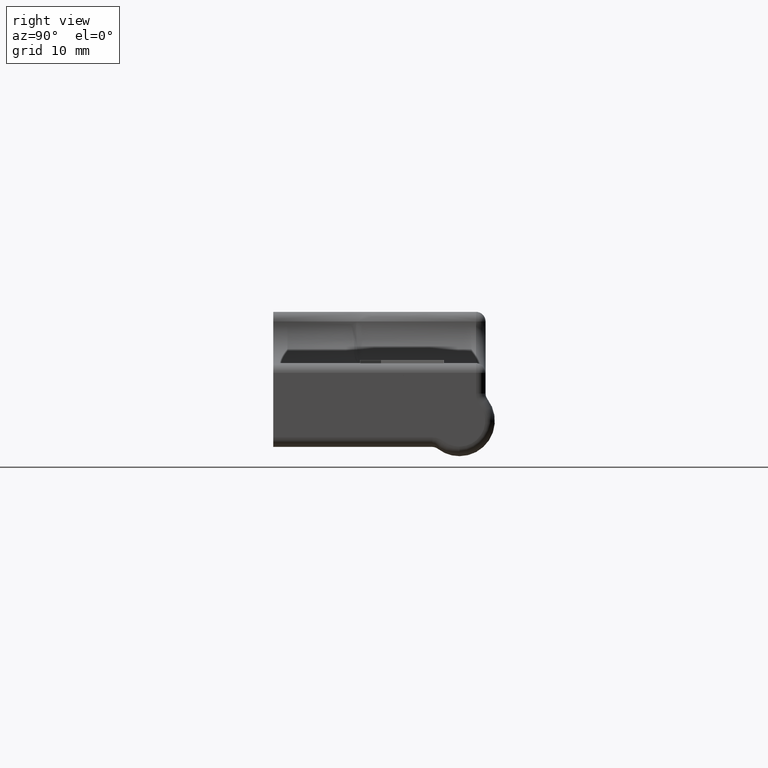
[diagram: clean part render]
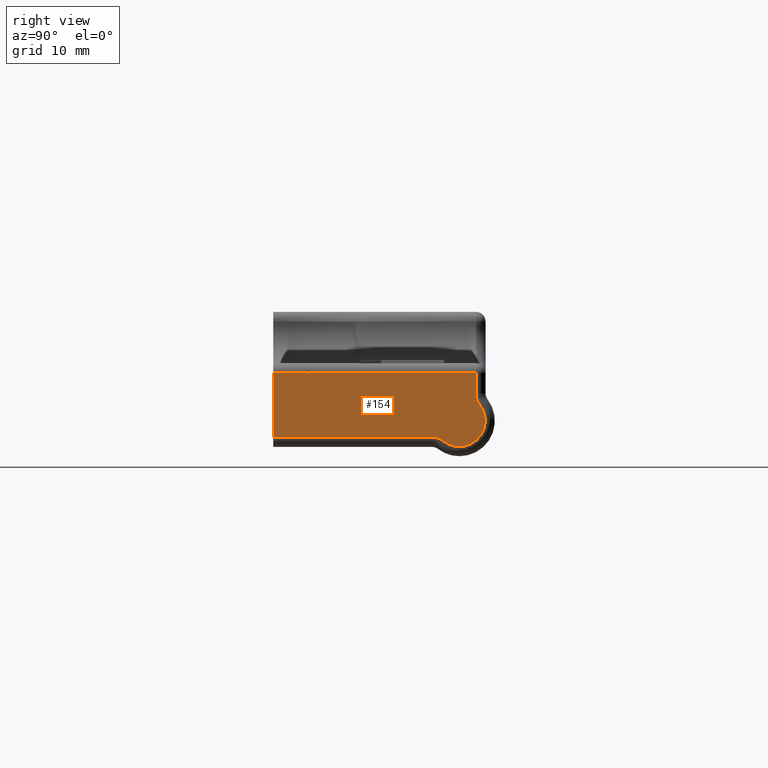
[diagram: same view with one face highlighted and labeled with its STEP entity id]
A machine part, right view. The second image highlights one B-rep face of the part: STEP entity #154.
In plain terms, the highlighted planar face has unit normal (1, -0, 0).
Its self-contained STEP definition (entity closure, byte-faithful):
#154=ADVANCED_FACE('',(#324),#325,.T.);
#324=FACE_OUTER_BOUND('',#880,.T.);
#325=PLANE('',#881);
#880=EDGE_LOOP('',(#2069,#2070,#2071,#2072,#2073,#2074,#2075,#2076));
#881=AXIS2_PLACEMENT_3D('',#2077,#2078,#2079);
#2069=ORIENTED_EDGE('',*,*,#3008,.T.);
#2070=ORIENTED_EDGE('',*,*,#3009,.T.);
#2071=ORIENTED_EDGE('',*,*,#3010,.T.);
#2072=ORIENTED_EDGE('',*,*,#3011,.T.);
#2073=ORIENTED_EDGE('',*,*,#3012,.F.);
#2074=ORIENTED_EDGE('',*,*,#3013,.T.);
#2075=ORIENTED_EDGE('',*,*,#2885,.T.);
#2076=ORIENTED_EDGE('',*,*,#3014,.F.);
#2077=CARTESIAN_POINT('',(53.0,-1.04083408558608E-14,6.0));
#2078=DIRECTION('',(1.0,-1.22464679914735E-16,5.78241158658936E-17));
#2079=DIRECTION('',(-5.78241158658936E-17,6.12323399573677E-17,1.0));
#2885=EDGE_CURVE('',#3201,#3205,#3207,.T.);
#3008=EDGE_CURVE('',#3419,#3420,#3421,.F.);
#3009=EDGE_CURVE('',#3420,#3422,#3423,.F.);
#3010=EDGE_CURVE('',#3422,#3424,#3425,.T.);
#3011=EDGE_CURVE('',#3424,#3426,#3427,.T.);
#3012=EDGE_CURVE('',#3428,#3426,#3429,.T.);
#3013=EDGE_CURVE('',#3428,#3201,#3430,.T.);
#3014=EDGE_CURVE('',#3419,#3205,#3431,.T.);
#3201=VERTEX_POINT('',#3757);
#3205=VERTEX_POINT('',#3761);
#3207=CIRCLE('',#3763,4.0);
#3419=VERTEX_POINT('',#4388);
#3420=VERTEX_POINT('',#4389);
#3421=LINE('',#4390,#4391);
#3422=VERTEX_POINT('',#4392);
#3423=LINE('',#4393,#4394);
#3424=VERTEX_POINT('',#4395);
#3425=LINE('',#4396,#4397);
#3426=VERTEX_POINT('',#4398);
#3427=LINE('',#4399,#4400);
#3428=VERTEX_POINT('',#4401);
#3429=CIRCLE('',#4402,3.0);
#3430=CIRCLE('',#4403,4.0);
#3431=CIRCLE('',#4404,3.0);
#3757=CARTESIAN_POINT('',(53.0,28.9393398282202,-6.93933982822019));
#3761=CARTESIAN_POINT('',(53.0,32.1168599263801,-0.509655481275108));
#3763=AXIS2_PLACEMENT_3D('',#5026,#5027,#5028);
#4388=CARTESIAN_POINT('',(53.0,31.5,1.3126077789337));
#4389=CARTESIAN_POINT('',(53.0,31.5,4.5));
#4390=CARTESIAN_POINT('',(53.0,31.5,6.0));
#4391=VECTOR('',#5128,1000.0);
#4392=CARTESIAN_POINT('',(53.0,-1.04083408558608E-14,4.5));
#4393=CARTESIAN_POINT('',(53.0,-1.04083408558608E-14,4.5));
#4394=VECTOR('',#5129,1000.0);
#4395=CARTESIAN_POINT('',(53.0,-1.04083408558608E-14,-5.5));
#4396=CARTESIAN_POINT('',(53.0,-1.04083408558608E-14,6.0));
#4397=VECTOR('',#5130,1000.0);
#4398=CARTESIAN_POINT('',(53.0,24.6873922210663,-5.5));
#4399=CARTESIAN_POINT('',(53.0,-1.04083408558608E-14,-5.5));
#4400=VECTOR('',#5131,1000.0);
#4401=CARTESIAN_POINT('',(53.0,26.5096554812751,-6.11685992638009));
#4402=AXIS2_PLACEMENT_3D('',#5132,#5133,#5134);
#4403=AXIS2_PLACEMENT_3D('',#5135,#5136,#5137);
#4404=AXIS2_PLACEMENT_3D('',#5138,#5139,#5140);
#5026=CARTESIAN_POINT('',(53.0,28.9393398282202,-2.93933982822019));
#5027=DIRECTION('',(1.0,-1.22464679914735E-16,5.78241158658936E-17));
#5028=DIRECTION('',(5.78241158658936E-17,-6.12323399573677E-17,-1.0));
#5128=DIRECTION('',(5.78241158658936E-17,-6.12323399573677E-17,-1.0));
#5129=DIRECTION('',(1.22464679914735E-16,1.0,-6.12323399573677E-17));
#5130=DIRECTION('',(5.78241158658936E-17,-6.12323399573677E-17,-1.0));
#5131=DIRECTION('',(1.22464679914735E-16,1.0,-6.12323399573677E-17));
#5132=CARTESIAN_POINT('',(53.0,24.6873922210663,-8.5));
#5133=DIRECTION('',(1.0,-1.22464679914735E-16,5.78241158658936E-17));
#5134=DIRECTION('',(5.78241158658936E-17,-6.12323399573677E-17,-1.0));
#5135=CARTESIAN_POINT('',(53.0,28.9393398282202,-2.93933982822019));
#5136=DIRECTION('',(1.0,-1.22464679914735E-16,5.78241158658936E-17));
#5137=DIRECTION('',(5.78241158658936E-17,-6.12323399573677E-17,-1.0));
#5138=CARTESIAN_POINT('',(53.0,34.5,1.3126077789337));
#5139=DIRECTION('',(1.0,-1.22464679914735E-16,5.78241158658936E-17));
#5140=DIRECTION('',(5.78241158658936E-17,-6.12323399573677E-17,-1.0));